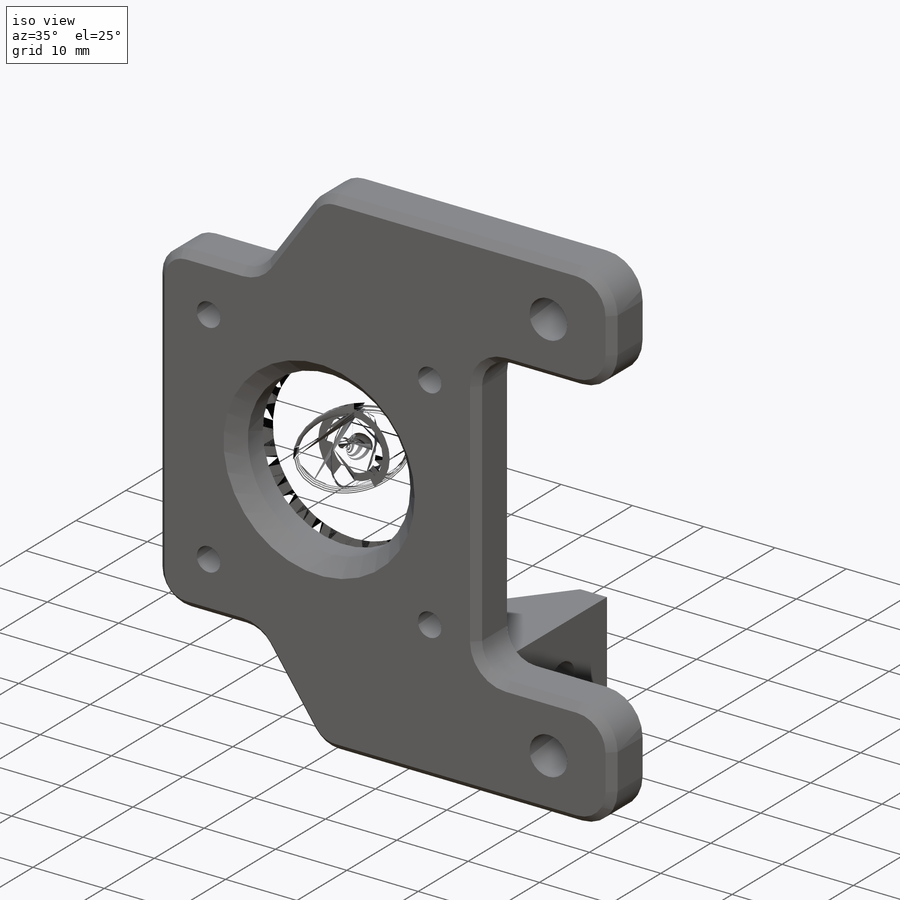
[diagram: iso view]
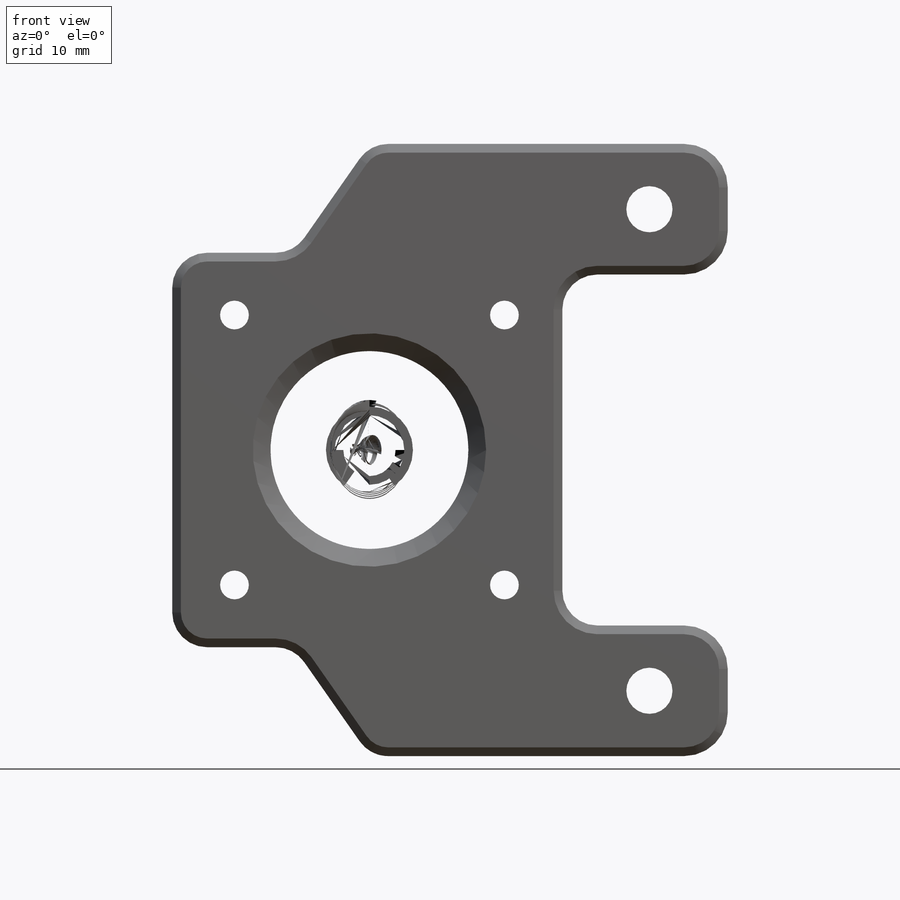
[diagram: front view]
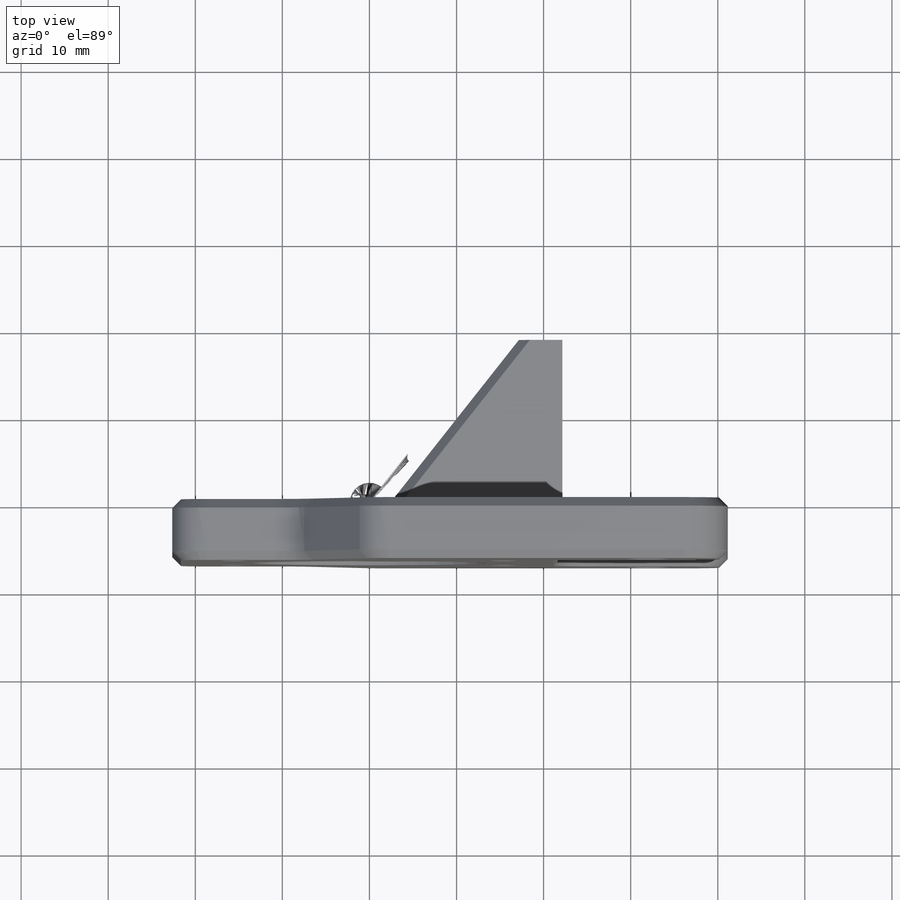
[diagram: top view]
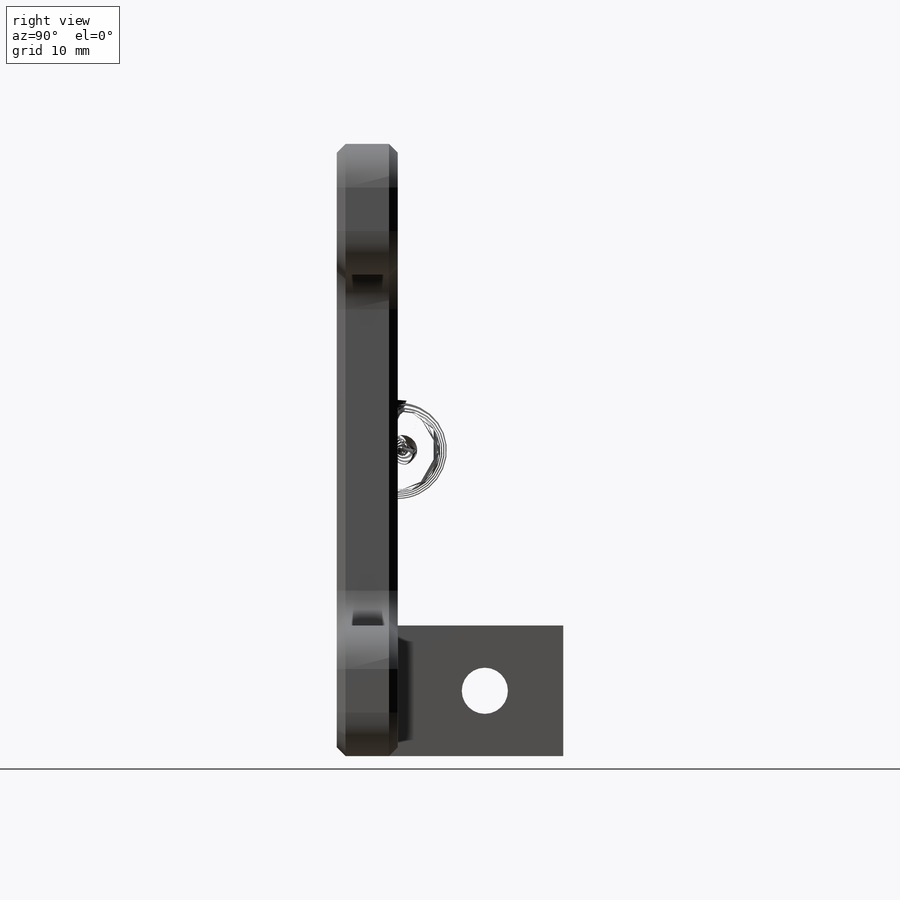
[diagram: right view]
SOLIDWORKS PART (.sldprt)
format: sldprt  version: not decoded by parser v0  size: 443,392 bytes
history: native  units: mm
features: sketch x4, extrude x2, cut_extrude x2, chamfer x2, material x1, fillet x1 (+13 scaffold rows collapsed)
feature tree (25):
  scaffold x13  (default folders/planes/origin — collapsed)
  material  "ABS"
  sketch  "Sketch2"  dims[c1.D4=22.0mm c1.D5=3.0mm c1.D11=2.0mm c1.D7=5.0mm c2.D11=5.0mm c2.D13=3.0mm c2.D14=3.3mm c2.D15=22.8mm c2.D16=5.3mm c2.D17=5.3mm c2.D7=4.0mm c2.D3=22.0mm c2.D4=22.8mm c2.D6=3.0mm c3.D7=3.3mm c3.D13=4.0mm c3.D14=4.0mm c3.D16=5.3mm c3.D17=5.3mm c3.D21=5.0mm c3.D22=4.0mm c3.D23=5.3mm c3.D1=42.3mm c3.D2=42.3mm c3.D3=31.0mm c3.D4=31.0mm c3.D6=10.0mm c4.D7=1.0mm c4.D8=10.0mm c4.D9=1.5mm c4.D10=7.0mm c4.D12=1.0mm c4.D6=1.0mm c5.D7=42.3mm c5.D8=13.0mm c5.D9=15.0mm c5.D10=19.0mm c5.D12=9.0mm c5.D17=10.0mm c5.D18=27.0mm c5.D19=~11.895394mm c6.D19=130.0deg c6.D20=1.0mm c6.D21=~9.149642mm c7.D21=130.0deg c7.D22=1.0mm c7.D9=18.9mm c7.D23=18.9mm c8.D9=15.0mm c8.D23=15.0mm c8.D8=15.0mm c9.D23=37.8mm c9.D1=42.3mm c9.D2=42.3mm c9.D5=31.0mm c9.D8=1.0mm c9.D9=19.0mm c9.D10=1.5mm c9.D11=1.5mm c9.D12=1.5mm c9.D14=15.0mm c9.D15=20.0mm c9.D17=10.0mm c9.D18=~10.684831mm c10.D18=125.0deg c10.D19=14.0mm c10.D20=~7.184831mm c11.D20=125.0deg c11.D22=34.15mm]
  extrude  "Boss-Extrude1"  Depth=7mm
  sketch  "Sketch3"  dims[c1.D1=~16.169357mm c2.D1=50.0deg c2.D2=5.0mm c2.D3=19.0mm c3.D1=19.0mm]
  extrude  "Boss-Extrude2"  Depth=15mm
  sketch  "Sketch5"  dims[D1=5.3mm D2=10.0mm]
  cut_extrude  "Cut-Extrude1"  Depth=5mm
  sketch  "Sketch6"  dims[D1=9.5mm]
  cut_extrude  "Cut-Extrude2"  [1 undecoded]
  chamfer  "Chamfer2"  Distance=2mm Angle=45deg
  chamfer  "Chamfer3"  Distance=1mm Angle=45deg
  fillet  "Fillet1"  Radius=1mm
decode coverage: 10 of 11 modeling features carry decoded parameters
note: ~ marks probable driven/reference dimensions
note: 1 parameter value undecoded
note: suppression state not decoded; provenance and decode notes live in map.json
